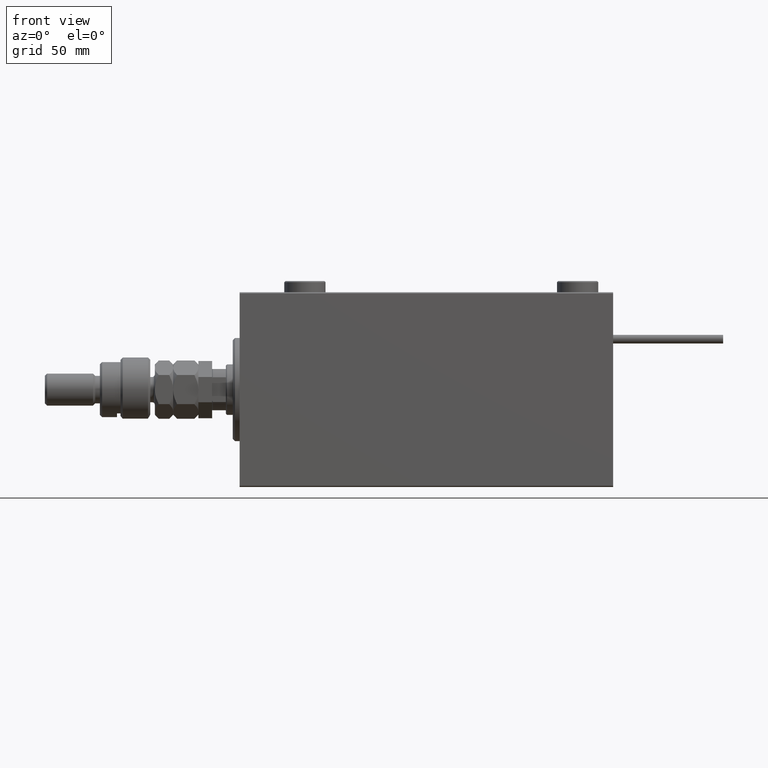
[diagram: clean part render]
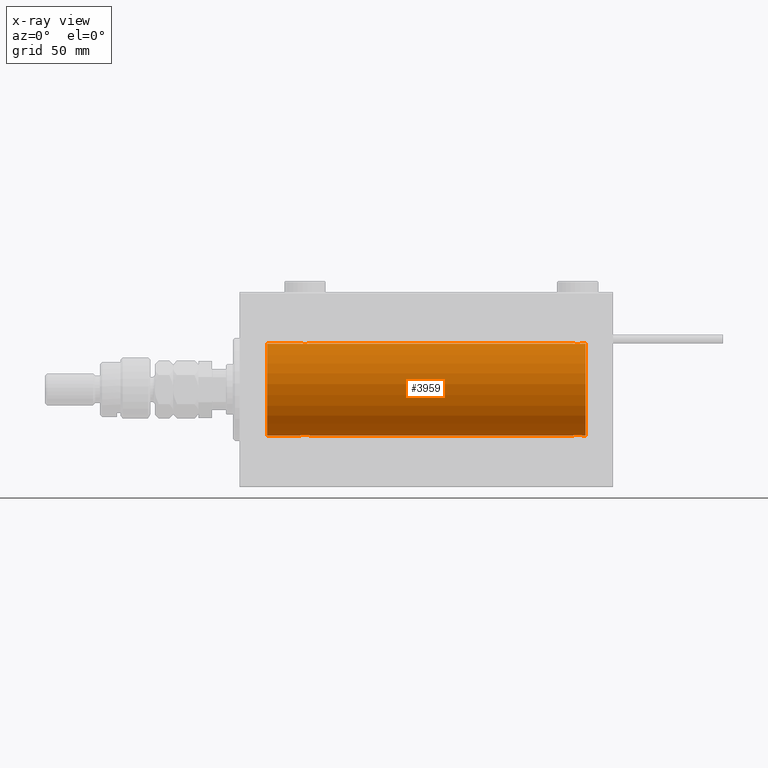
[diagram: x-ray — body ghosted, one internal face saturated and labeled with its STEP entity id]
A machine part, front view, then the same camera in x-ray: the body is ghosted and one INTERNAL B-rep face — a face not visible from any outside direction — is saturated and labeled: STEP entity #3959.
In plain terms, the highlighted cylindrical surface (partial cylindrical patch) has radius 20 mm, axis along (-1, -0, -0).
Its self-contained STEP definition (entity closure, byte-faithful):
#174 = CARTESIAN_POINT ( 'NONE',  ( 147.6305887171083953, -2.000100592782551701, 19.89973863218036598 ) ) ;
#2210 = CARTESIAN_POINT ( 'NONE',  ( 30.24686976303071617, -1.008108445278690146, 19.97602680192586533 ) ) ;
#3143 = CARTESIAN_POINT ( 'NONE',  ( 146.6142092332927405, -1.797933656607938691, -19.91908554465557657 ) ) ;
#3223 = EDGE_LOOP ( 'NONE', ( #28212, #28268, #29205, #36053, #40988, #3582, #54603, #41635, #5199, #49474, #20250, #38988 ) ) ;
#3413 = CARTESIAN_POINT ( 'NONE',  ( 149.5000000000000284, -0.2610801504281899388, -19.99999999999999645 ) ) ;
#3582 = ORIENTED_EDGE ( 'NONE', *, *, #20057, .T. ) ;
#3626 = CARTESIAN_POINT ( 'NONE',  ( 30.09941524884030173, -1.228758402364235502, -19.96307487248084911 ) ) ;
#3698 = CARTESIAN_POINT ( 'NONE',  ( 146.9835146708108766, -1.936551476643014080, -19.90603968831098669 ) ) ;
#3803 = CARTESIAN_POINT ( 'NONE',  ( 27.49693443660397563, -1.735203193119895460, 19.92471783160911869 ) ) ;
#3905 = CARTESIAN_POINT ( 'NONE',  ( 26.75313023696928738, -1.008108445278687704, -19.97602680192586533 ) ) ;
#3959 = ADVANCED_FACE ( 'NONE', ( #15359 ), #36889, .F. ) ;
#3974 = CARTESIAN_POINT ( 'NONE',  ( 148.5030655633960066, -1.735203193119897014, -19.92471783160911158 ) ) ;
#4415 = AXIS2_PLACEMENT_3D ( 'NONE', #24291, #28474, #29515 ) ;
#4935 = CARTESIAN_POINT ( 'NONE',  ( 145.5524493711749869, -0.5243189001515013992, 19.99457699142850231 ) ) ;
#5199 = ORIENTED_EDGE ( 'NONE', *, *, #48662, .T. ) ;
#5205 = CARTESIAN_POINT ( 'NONE',  ( 147.7607725603157292, -1.987205673487804747, 19.90104673894209952 ) ) ;
#6376 = CARTESIAN_POINT ( 'NONE',  ( 26.50000000000000355, -3.809869420541414000E-15, -20.00000000000000000 ) ) ;
#6418 = CARTESIAN_POINT ( 'NONE',  ( 29.14348528733041377, -1.898187925611340310, 19.90978194174746818 ) ) ;
#6498 = CARTESIAN_POINT ( 'NONE',  ( 12.00000000000001066, 0.000000000000000000, 20.00000000000000000 ) ) ;
#6716 = VERTEX_POINT ( 'NONE', #6376 ) ;
#7350 = CARTESIAN_POINT ( 'NONE',  ( 145.9022530844526955, -1.230936344679295136, -19.96293863536308422 ) ) ;
#7555 = EDGE_CURVE ( 'NONE', #13228, #50364, #17864, .T. ) ;
#7628 = CARTESIAN_POINT ( 'NONE',  ( 148.1463067392464552, -1.897222639860608906, -19.90987429971496070 ) ) ;
#7633 = EDGE_CURVE ( 'NONE', #13845, #38154, #16209, .T. ) ;
#7676 = EDGE_CURVE ( 'NONE', #13558, #38154, #30824, .T. ) ;
#7726 = DIRECTION ( 'NONE',  ( -1.000000000000000000, -0.000000000000000000, -0.000000000000000000 ) ) ;
#7902 = CARTESIAN_POINT ( 'NONE',  ( 149.4475506288250699, -0.5243189001515055070, -19.99457699142850231 ) ) ;
#7910 = DIRECTION ( 'NONE',  ( 0.000000000000000000, 0.000000000000000000, 1.000000000000000000 ) ) ;
#8315 = CARTESIAN_POINT ( 'NONE',  ( 148.7180541947215602, -1.591668229360197806, 19.93669678979812687 ) ) ;
#8320 = CARTESIAN_POINT ( 'NONE',  ( 151.0000000000000000, 2.449293598294706513E-15, -20.00000000000000000 ) ) ;
#8596 = CARTESIAN_POINT ( 'NONE',  ( 148.0164853291890665, -1.936551476642997649, 19.90603968831098669 ) ) ;
#8678 = CARTESIAN_POINT ( 'NONE',  ( 27.49932780860757475, -1.736582545981376180, -19.92459705242981371 ) ) ;
#9547 = VERTEX_POINT ( 'NONE', #48275 ) ;
#9576 = CARTESIAN_POINT ( 'NONE',  ( 151.0000000000000000, 0.000000000000000000, 20.00000000000000000 ) ) ;
#9859 = EDGE_CURVE ( 'NONE', #9999, #22154, #17993, .T. ) ;
#9999 = VERTEX_POINT ( 'NONE', #12326 ) ;
#11207 = CARTESIAN_POINT ( 'NONE',  ( 30.50000000000000000, -6.994834070630008937E-15, 20.00000000000000000 ) ) ;
#12209 = CARTESIAN_POINT ( 'NONE',  ( 27.17693331080530683, -1.505486175075772426, 19.94347168299868045 ) ) ;
#12326 = CARTESIAN_POINT ( 'NONE',  ( 145.5000000000000284, -1.553188236289650144E-23, 20.00000000000000000 ) ) ;
#12498 = CARTESIAN_POINT ( 'NONE',  ( 30.49999999999997868, -0.2644051013330948052, 19.99999999999999645 ) ) ;
#12806 = CARTESIAN_POINT ( 'NONE',  ( 147.3663480385755236, -1.999898234284060772, 19.89975896996866211 ) ) ;
#13152 = CARTESIAN_POINT ( 'NONE',  ( 27.17903093152710525, -1.507328959728492457, -19.94333197382385592 ) ) ;
#13228 = VERTEX_POINT ( 'NONE', #54030 ) ;
#13558 = VERTEX_POINT ( 'NONE', #24795 ) ;
#13845 = VERTEX_POINT ( 'NONE', #53898 ) ;
#14020 = CARTESIAN_POINT ( 'NONE',  ( 26.55244937117492299, -0.5243189001515012881, 19.99457699142850586 ) ) ;
#14181 = AXIS2_PLACEMENT_3D ( 'NONE', #46819, #24692, #7910 ) ;
#14764 = EDGE_CURVE ( 'NONE', #50364, #22233, #17821, .T. ) ;
#15359 = FACE_OUTER_BOUND ( 'NONE', #3223, .T. ) ;
#15681 = CARTESIAN_POINT ( 'NONE',  ( 29.14630673924643744, -1.897222639860594029, -19.90987429971496780 ) ) ;
#16022 = CARTESIAN_POINT ( 'NONE',  ( 145.5000000000000284, -1.510525576716094838E-14, -20.00000000000000000 ) ) ;
#16129 = CARTESIAN_POINT ( 'NONE',  ( 29.01648532918904522, -1.936551476643006087, 19.90603968831098314 ) ) ;
#16209 = CIRCLE ( 'NONE', #53747, 20.00000000000000000 ) ;
#16308 = CARTESIAN_POINT ( 'NONE',  ( 147.2392274396843277, -1.987205673487821178, -19.90104673894210308 ) ) ;
#16990 = CARTESIAN_POINT ( 'NONE',  ( 145.5000000000000284, -0.2610801504281912711, 19.99999999999999645 ) ) ;
#17273 = CARTESIAN_POINT ( 'NONE',  ( 145.5000000000000284, -1.553188236289650144E-23, 20.00000000000000000 ) ) ;
#17354 = CARTESIAN_POINT ( 'NONE',  ( 28.23922743968432059, -1.987205673487808966, -19.90104673894211018 ) ) ;
#17821 = LINE ( 'NONE', #8320, #34210 ) ;
#17864 = B_SPLINE_CURVE_WITH_KNOTS ( 'NONE', 3,
 ( #50449, #3413, #7902, #54675, #25233, #25515, #29147, #3974, #51011, #7628, #45973, #46241, #50174, #42606, #16308, #3698, #38128, #3143, #46526, #54385, #20771, #7350, #37843, #28874, #54950, #16022 ),
 .UNSPECIFIED., .F., .F.,
 ( 4, 2, 2, 2, 2, 2, 2, 2, 2, 2, 2, 2, 4 ),
 ( 0.006256819553329819733, 0.007038738568778733426, 0.007820657584227647119, 0.008211617091952132588, 0.008602576599676618058, 0.008993536107401105262, 0.009384495615125590731, 0.009775455122850077935, 0.01016641463057456340, 0.01055737413829905061, 0.01094833364602353781, 0.01173025266147256773, 0.01251217167692160112 ),
 .UNSPECIFIED. ) ;
#17993 = LINE ( 'NONE', #25802, #32326 ) ;
#19294 = CARTESIAN_POINT ( 'NONE',  ( 28.76077256031568297, -1.987205673487810298, 19.90104673894211018 ) ) ;
#20057 = EDGE_CURVE ( 'NONE', #6716, #13845, #46066, .T. ) ;
#20250 = ORIENTED_EDGE ( 'NONE', *, *, #55100, .T. ) ;
#20771 = CARTESIAN_POINT ( 'NONE',  ( 146.1790309315271372, -1.507328959728508666, -19.94333197382385947 ) ) ;
#21049 = VECTOR ( 'NONE', #31231, 1000.000000000000000 ) ;
#21172 = CARTESIAN_POINT ( 'NONE',  ( 145.7517408653997961, -1.005710574260841650, 19.97614991974273835 ) ) ;
#21248 = CARTESIAN_POINT ( 'NONE',  ( 26.50000000000001066, -0.2644051013331030209, -20.00000000000000355 ) ) ;
#21527 = CARTESIAN_POINT ( 'NONE',  ( 28.36941128289166159, -2.000100592782553921, -19.89973863218036598 ) ) ;
#21722 = CARTESIAN_POINT ( 'NONE',  ( 149.5000000000000284, 6.344962748519499734E-15, 20.00000000000000000 ) ) ;
#21998 = CARTESIAN_POINT ( 'NONE',  ( 145.9005847511597835, -1.228758402364239499, 19.96307487248084556 ) ) ;
#22154 = VERTEX_POINT ( 'NONE', #11207 ) ;
#22233 = VERTEX_POINT ( 'NONE', #44514 ) ;
#23663 = EDGE_CURVE ( 'NONE', #51744, #9547, #36517, .T. ) ;
#24291 = CARTESIAN_POINT ( 'NONE',  ( 151.0000000000000000, 0.000000000000000000, 0.000000000000000000 ) ) ;
#24692 = DIRECTION ( 'NONE',  ( -1.000000000000000000, 0.000000000000000000, 0.000000000000000000 ) ) ;
#24795 = CARTESIAN_POINT ( 'NONE',  ( 26.50000000000000355, -1.552636033655995435E-23, 20.00000000000000000 ) ) ;
#24878 = CARTESIAN_POINT ( 'NONE',  ( 30.49999999999999645, -0.2610801504281900498, -19.99999999999999645 ) ) ;
#25233 = CARTESIAN_POINT ( 'NONE',  ( 149.0994152488403586, -1.228758402364252822, -19.96307487248083845 ) ) ;
#25515 = CARTESIAN_POINT ( 'NONE',  ( 148.8230666891947465, -1.505486175075791966, -19.94347168299867690 ) ) ;
#25636 = CARTESIAN_POINT ( 'NONE',  ( 149.2468697630307020, -1.008108445278671050, 19.97602680192585822 ) ) ;
#25802 = CARTESIAN_POINT ( 'NONE',  ( 151.0000000000000000, 0.000000000000000000, 20.00000000000000000 ) ) ;
#25905 = CARTESIAN_POINT ( 'NONE',  ( 149.0977469155472761, -1.230936344679278704, 19.96293863536309132 ) ) ;
#26766 = EDGE_CURVE ( 'NONE', #54912, #13228, #46234, .T. ) ;
#26909 = CARTESIAN_POINT ( 'NONE',  ( 12.00000000000001066, 0.000000000000000000, 0.000000000000000000 ) ) ;
#27039 = B_SPLINE_CURVE_WITH_KNOTS ( 'NONE', 3,
 ( #35269, #52365, #14020, #48430, #52923, #12209, #50833, #3803, #40560, #29536, #42429, #33187, #31885, #46635, #19294, #16129, #6418, #37955, #27957, #33463, #37377, #44772, #2210, #29248, #12498, #50274 ),
 .UNSPECIFIED., .F., .F.,
 ( 4, 2, 2, 2, 2, 2, 2, 2, 2, 2, 2, 2, 4 ),
 ( 0.006256819553329787641, 0.007038738568778755977, 0.007820657584227725181, 0.008211617091952205447, 0.008602576599676685712, 0.008993536107401164242, 0.009384495615125644508, 0.009775455122850124773, 0.01016641463057460504, 0.01055737413829908530, 0.01094833364602356557, 0.01173025266147252610, 0.01251217167692148663 ),
 .UNSPECIFIED. ) ;
#27237 = EDGE_CURVE ( 'NONE', #22233, #6716, #32795, .T. ) ;
#27957 = CARTESIAN_POINT ( 'NONE',  ( 29.50067219139244301, -1.736582545981377290, 19.92459705242981371 ) ) ;
#28212 = ORIENTED_EDGE ( 'NONE', *, *, #45655, .F. ) ;
#28256 = CARTESIAN_POINT ( 'NONE',  ( 29.72028945794465571, -1.589957321664208223, -19.93683391378736047 ) ) ;
#28268 = ORIENTED_EDGE ( 'NONE', *, *, #26766, .T. ) ;
#28474 = DIRECTION ( 'NONE',  ( -1.000000000000000000, -0.000000000000000000, -0.000000000000000000 ) ) ;
#28874 = CARTESIAN_POINT ( 'NONE',  ( 145.5532051580820507, -0.5270924491156762093, -19.99450181871976184 ) ) ;
#29147 = CARTESIAN_POINT ( 'NONE',  ( 148.7202894579446877, -1.589957321664208001, -19.93683391378736403 ) ) ;
#29205 = ORIENTED_EDGE ( 'NONE', *, *, #7555, .T. ) ;
#29248 = CARTESIAN_POINT ( 'NONE',  ( 30.44679484191798124, -0.5270924491156734337, 19.99450181871975829 ) ) ;
#29515 = DIRECTION ( 'NONE',  ( 0.000000000000000000, 0.000000000000000000, 1.000000000000000000 ) ) ;
#29536 = CARTESIAN_POINT ( 'NONE',  ( 27.85369326075355545, -1.897222639860595583, 19.90987429971497491 ) ) ;
#30110 = CARTESIAN_POINT ( 'NONE',  ( 146.1769333108053672, -1.505486175075775979, 19.94347168299867690 ) ) ;
#30193 = CARTESIAN_POINT ( 'NONE',  ( 27.85651471266959334, -1.898187925611338533, -19.90978194174746818 ) ) ;
#30824 = LINE ( 'NONE', #9576, #34976 ) ;
#31231 = DIRECTION ( 'NONE',  ( -1.000000000000000000, -0.000000000000000000, -0.000000000000000000 ) ) ;
#31548 = CARTESIAN_POINT ( 'NONE',  ( 151.0000000000000000, 0.000000000000000000, 20.00000000000000000 ) ) ;
#31885 = CARTESIAN_POINT ( 'NONE',  ( 28.36634803857552001, -1.999898234284063436, 19.89975896996866211 ) ) ;
#32181 = CARTESIAN_POINT ( 'NONE',  ( 29.82306668919470383, -1.505486175075772870, -19.94347168299867334 ) ) ;
#32326 = VECTOR ( 'NONE', #42892, 1000.000000000000000 ) ;
#32715 = CARTESIAN_POINT ( 'NONE',  ( 28.63365196142448355, -1.999898234284062992, -19.89975896996866211 ) ) ;
#32795 = B_SPLINE_CURVE_WITH_KNOTS ( 'NONE', 3,
 ( #46170, #24878, #45084, #41967, #3626, #32181, #28256, #45350, #54048, #15681, #47273, #55153, #32715, #21527, #17354, #34403, #30193, #33839, #8678, #43087, #13152, #46451, #3905, #50939, #21248, #38327 ),
 .UNSPECIFIED., .F., .F.,
 ( 4, 2, 2, 2, 2, 2, 2, 2, 2, 2, 2, 2, 4 ),
 ( 0.006256819553329842284, 0.007038738568778818427, 0.007820657584227792836, 0.008211617091952278305, 0.008602576599676762040, 0.008993536107401245774, 0.009384495615125729509, 0.009775455122850213244, 0.01016641463057469871, 0.01055737413829918071, 0.01094833364602366618, 0.01173025266147263365, 0.01251217167692159939 ),
 .UNSPECIFIED. ) ;
#33187 = CARTESIAN_POINT ( 'NONE',  ( 28.23641855908585185, -1.986835489085814643, 19.90108393514801222 ) ) ;
#33463 = CARTESIAN_POINT ( 'NONE',  ( 29.71805419472151044, -1.591668229360198028, 19.93669678979812332 ) ) ;
#33839 = CARTESIAN_POINT ( 'NONE',  ( 27.61420923329272981, -1.797933656607917596, -19.91908554465558367 ) ) ;
#34041 = CARTESIAN_POINT ( 'NONE',  ( 148.3857907667072595, -1.797933656607912489, 19.91908554465557657 ) ) ;
#34210 = VECTOR ( 'NONE', #34874, 1000.000000000000000 ) ;
#34403 = CARTESIAN_POINT ( 'NONE',  ( 27.98351467081095123, -1.936551476643005198, -19.90603968831098314 ) ) ;
#34585 = CARTESIAN_POINT ( 'NONE',  ( 146.4969344366040502, -1.735203193119897236, 19.92471783160911514 ) ) ;
#34744 = DIRECTION ( 'NONE',  ( 0.000000000000000000, 0.000000000000000000, 1.000000000000000000 ) ) ;
#34869 = CARTESIAN_POINT ( 'NONE',  ( 149.5000000000000568, -0.2644051013331001898, 20.00000000000000355 ) ) ;
#34874 = DIRECTION ( 'NONE',  ( -1.000000000000000000, -0.000000000000000000, -0.000000000000000000 ) ) ;
#34976 = VECTOR ( 'NONE', #47910, 1000.000000000000000 ) ;
#35151 = CARTESIAN_POINT ( 'NONE',  ( 146.6117056279290694, -1.796691196322314443, 19.91919800395357143 ) ) ;
#35269 = CARTESIAN_POINT ( 'NONE',  ( 26.50000000000000355, -1.552636033655995435E-23, 20.00000000000000000 ) ) ;
#35612 = CIRCLE ( 'NONE', #14181, 20.00000000000000000 ) ;
#36053 = ORIENTED_EDGE ( 'NONE', *, *, #14764, .T. ) ;
#36227 = VECTOR ( 'NONE', #7726, 1000.000000000000000 ) ;
#36517 = LINE ( 'NONE', #44670, #21049 ) ;
#36889 = CYLINDRICAL_SURFACE ( 'NONE', #4415, 20.00000000000000000 ) ;
#37377 = CARTESIAN_POINT ( 'NONE',  ( 29.82096906847289830, -1.507328959728492901, 19.94333197382385592 ) ) ;
#37790 = CARTESIAN_POINT ( 'NONE',  ( 145.5000000000000284, -1.510525576716094838E-14, -20.00000000000000000 ) ) ;
#37843 = CARTESIAN_POINT ( 'NONE',  ( 145.7531302369693265, -1.008108445278692589, -19.97602680192585822 ) ) ;
#37955 = CARTESIAN_POINT ( 'NONE',  ( 29.38579076670729151, -1.797933656607919817, 19.91908554465558367 ) ) ;
#38128 = CARTESIAN_POINT ( 'NONE',  ( 146.8565147126696218, -1.898187925611359850, -19.90978194174746463 ) ) ;
#38154 = VERTEX_POINT ( 'NONE', #6498 ) ;
#38327 = CARTESIAN_POINT ( 'NONE',  ( 26.50000000000000355, -3.809869420541414000E-15, -20.00000000000000000 ) ) ;
#38988 = ORIENTED_EDGE ( 'NONE', *, *, #23663, .F. ) ;
#39075 = CARTESIAN_POINT ( 'NONE',  ( 146.8536932607536016, -1.897222639860593363, 19.90987429971496780 ) ) ;
#39233 = DIRECTION ( 'NONE',  ( -1.000000000000000000, 0.000000000000000000, 0.000000000000000000 ) ) ;
#40438 = B_SPLINE_CURVE_WITH_KNOTS ( 'NONE', 3,
 ( #17273, #16990, #4935, #21172, #21998, #30110, #52242, #34585, #35151, #39075, #51959, #43287, #12806, #174, #5205, #8596, #51133, #34041, #55343, #8315, #43557, #25905, #25636, #46926, #34869, #21722 ),
 .UNSPECIFIED., .F., .F.,
 ( 4, 2, 2, 2, 2, 2, 2, 2, 2, 2, 2, 2, 4 ),
 ( 0.006256819553329837080, 0.007038738568778794141, 0.007820657584227751202, 0.008211617091952229733, 0.008602576599676708263, 0.008993536107401185059, 0.009384495615125663590, 0.009775455122850142120, 0.01016641463057462239, 0.01055737413829909918, 0.01094833364602357945, 0.01173025266147259202, 0.01251217167692160633 ),
 .UNSPECIFIED. ) ;
#40560 = CARTESIAN_POINT ( 'NONE',  ( 27.61170562792908711, -1.796691196322317996, 19.91919800395357143 ) ) ;
#40775 = CARTESIAN_POINT ( 'NONE',  ( 151.0000000000000000, 2.449293598294706513E-15, -20.00000000000000000 ) ) ;
#40988 = ORIENTED_EDGE ( 'NONE', *, *, #27237, .T. ) ;
#41635 = ORIENTED_EDGE ( 'NONE', *, *, #7676, .F. ) ;
#41967 = CARTESIAN_POINT ( 'NONE',  ( 30.24825913460018612, -1.005710574260838985, -19.97614991974274190 ) ) ;
#42429 = CARTESIAN_POINT ( 'NONE',  ( 27.98076487864723205, -1.935816449315125531, 19.90611141657401717 ) ) ;
#42606 = CARTESIAN_POINT ( 'NONE',  ( 147.3694112828916332, -2.000100592782568576, -19.89973863218036243 ) ) ;
#42892 = DIRECTION ( 'NONE',  ( -1.000000000000000000, -0.000000000000000000, -0.000000000000000000 ) ) ;
#43087 = CARTESIAN_POINT ( 'NONE',  ( 27.28194580527848601, -1.591668229360197140, -19.93669678979812332 ) ) ;
#43287 = CARTESIAN_POINT ( 'NONE',  ( 147.2364185590858767, -1.986835489085816198, 19.90108393514801222 ) ) ;
#43557 = CARTESIAN_POINT ( 'NONE',  ( 148.8209690684728912, -1.507328959728491347, 19.94333197382385592 ) ) ;
#44514 = CARTESIAN_POINT ( 'NONE',  ( 30.50000000000000000, 2.449293582768389958E-15, -20.00000000000000000 ) ) ;
#44670 = CARTESIAN_POINT ( 'NONE',  ( 151.0000000000000000, 0.000000000000000000, 20.00000000000000000 ) ) ;
#44772 = CARTESIAN_POINT ( 'NONE',  ( 30.09774691554729742, -1.230936344679279371, 19.96293863536309487 ) ) ;
#45084 = CARTESIAN_POINT ( 'NONE',  ( 30.44755062882508412, -0.5243189001514996228, -19.99457699142849876 ) ) ;
#45350 = CARTESIAN_POINT ( 'NONE',  ( 29.50306556339602437, -1.735203193119894349, -19.92471783160910803 ) ) ;
#45655 = EDGE_CURVE ( 'NONE', #54912, #51744, #35612, .T. ) ;
#45966 = CARTESIAN_POINT ( 'NONE',  ( 151.0000000000000000, 2.449293598294706513E-15, -20.00000000000000000 ) ) ;
#45973 = CARTESIAN_POINT ( 'NONE',  ( 148.0192351213528070, -1.935816449315140408, -19.90611141657402072 ) ) ;
#46066 = LINE ( 'NONE', #50267, #36227 ) ;
#46170 = CARTESIAN_POINT ( 'NONE',  ( 30.50000000000000000, 2.449293582768389958E-15, -20.00000000000000000 ) ) ;
#46234 = LINE ( 'NONE', #45966, #49773 ) ;
#46241 = CARTESIAN_POINT ( 'NONE',  ( 147.7635814409141517, -1.986835489085827966, -19.90108393514800511 ) ) ;
#46451 = CARTESIAN_POINT ( 'NONE',  ( 26.90225308445269903, -1.230936344679278260, -19.96293863536309132 ) ) ;
#46526 = CARTESIAN_POINT ( 'NONE',  ( 146.4993278086076600, -1.736582545981393277, -19.92459705242980661 ) ) ;
#46635 = CARTESIAN_POINT ( 'NONE',  ( 28.63058871710834552, -2.000100592782554809, 19.89973863218036598 ) ) ;
#46819 = CARTESIAN_POINT ( 'NONE',  ( 151.0000000000000000, 0.000000000000000000, 0.000000000000000000 ) ) ;
#46926 = CARTESIAN_POINT ( 'NONE',  ( 149.4467948419180061, -0.5270924491156545599, 19.99450181871975829 ) ) ;
#47273 = CARTESIAN_POINT ( 'NONE',  ( 29.01923512135276795, -1.935816449315124643, -19.90611141657401717 ) ) ;
#47910 = DIRECTION ( 'NONE',  ( -1.000000000000000000, -0.000000000000000000, -0.000000000000000000 ) ) ;
#48275 = CARTESIAN_POINT ( 'NONE',  ( 149.5000000000000284, 6.344962748519499734E-15, 20.00000000000000000 ) ) ;
#48430 = CARTESIAN_POINT ( 'NONE',  ( 26.75174086539981033, -1.005710574260840318, 19.97614991974274190 ) ) ;
#48662 = EDGE_CURVE ( 'NONE', #13558, #22154, #27039, .T. ) ;
#49474 = ORIENTED_EDGE ( 'NONE', *, *, #9859, .F. ) ;
#49773 = VECTOR ( 'NONE', #50720, 1000.000000000000000 ) ;
#50174 = CARTESIAN_POINT ( 'NONE',  ( 147.6336519614245617, -1.999898234284076981, -19.89975896996866211 ) ) ;
#50267 = CARTESIAN_POINT ( 'NONE',  ( 151.0000000000000000, 2.449293598294706513E-15, -20.00000000000000000 ) ) ;
#50274 = CARTESIAN_POINT ( 'NONE',  ( 30.50000000000000000, -6.994834070630008937E-15, 20.00000000000000000 ) ) ;
#50364 = VERTEX_POINT ( 'NONE', #37790 ) ;
#50449 = CARTESIAN_POINT ( 'NONE',  ( 149.5000000000000284, 2.449293582762473501E-15, -20.00000000000000000 ) ) ;
#50720 = DIRECTION ( 'NONE',  ( -1.000000000000000000, -0.000000000000000000, -0.000000000000000000 ) ) ;
#50833 = CARTESIAN_POINT ( 'NONE',  ( 27.27971054205536205, -1.589957321664209111, 19.93683391378736403 ) ) ;
#50939 = CARTESIAN_POINT ( 'NONE',  ( 26.55320515808203297, -0.5270924491156698810, -19.99450181871976184 ) ) ;
#51011 = CARTESIAN_POINT ( 'NONE',  ( 148.3882943720709306, -1.796691196322330653, -19.91919800395357143 ) ) ;
#51133 = CARTESIAN_POINT ( 'NONE',  ( 148.1434852873304067, -1.898187925611334093, 19.90978194174746463 ) ) ;
#51744 = VERTEX_POINT ( 'NONE', #31548 ) ;
#51959 = CARTESIAN_POINT ( 'NONE',  ( 146.9807648786473067, -1.935816449315131527, 19.90611141657401717 ) ) ;
#52242 = CARTESIAN_POINT ( 'NONE',  ( 146.2797105420553692, -1.589957321664211998, 19.93683391378736403 ) ) ;
#52365 = CARTESIAN_POINT ( 'NONE',  ( 26.50000000000000711, -0.2610801504281919927, 20.00000000000000000 ) ) ;
#52923 = CARTESIAN_POINT ( 'NONE',  ( 26.90058475115969472, -1.228758402364234392, 19.96307487248084556 ) ) ;
#53747 = AXIS2_PLACEMENT_3D ( 'NONE', #26909, #39233, #34744 ) ;
#53898 = CARTESIAN_POINT ( 'NONE',  ( 12.00000000000001066, 2.449293598294706513E-15, -20.00000000000000000 ) ) ;
#54030 = CARTESIAN_POINT ( 'NONE',  ( 149.5000000000000284, 2.449293582762473501E-15, -20.00000000000000000 ) ) ;
#54048 = CARTESIAN_POINT ( 'NONE',  ( 29.38829437207091999, -1.796691196322316664, -19.91919800395357143 ) ) ;
#54385 = CARTESIAN_POINT ( 'NONE',  ( 146.2819458052784682, -1.591668229360214903, -19.93669678979811977 ) ) ;
#54603 = ORIENTED_EDGE ( 'NONE', *, *, #7633, .T. ) ;
#54675 = CARTESIAN_POINT ( 'NONE',  ( 149.2482591346002039, -1.005710574260847645, -19.97614991974274190 ) ) ;
#54912 = VERTEX_POINT ( 'NONE', #40775 ) ;
#54950 = CARTESIAN_POINT ( 'NONE',  ( 145.5000000000000853, -0.2644051013331212840, -20.00000000000000000 ) ) ;
#55100 = EDGE_CURVE ( 'NONE', #9999, #9547, #40438, .T. ) ;
#55153 = CARTESIAN_POINT ( 'NONE',  ( 28.76358144091416236, -1.986835489085814199, -19.90108393514801222 ) ) ;
#55343 = CARTESIAN_POINT ( 'NONE',  ( 148.5006721913923968, -1.736582545981374404, 19.92459705242980306 ) ) ;